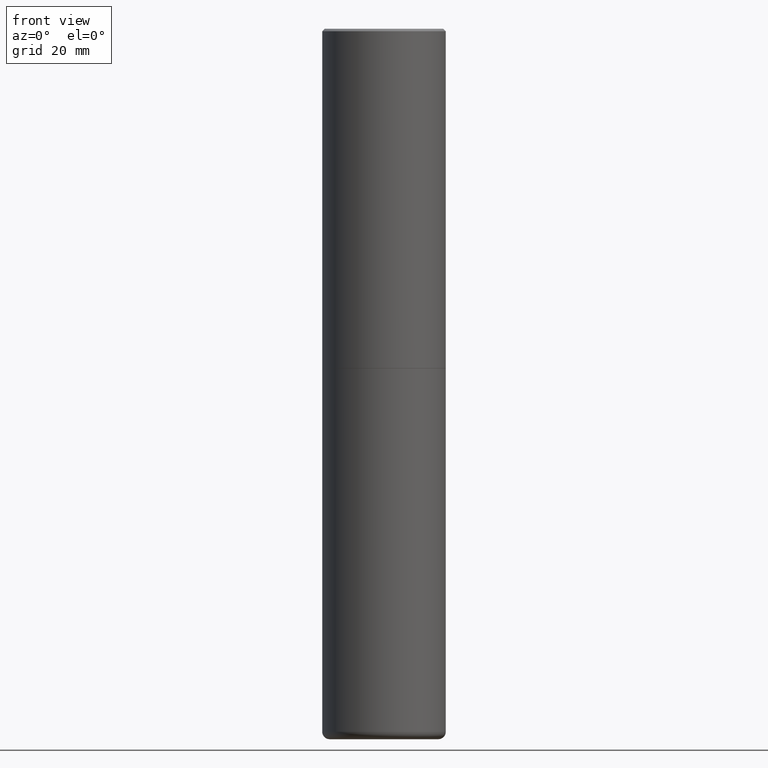
[diagram: clean part render]
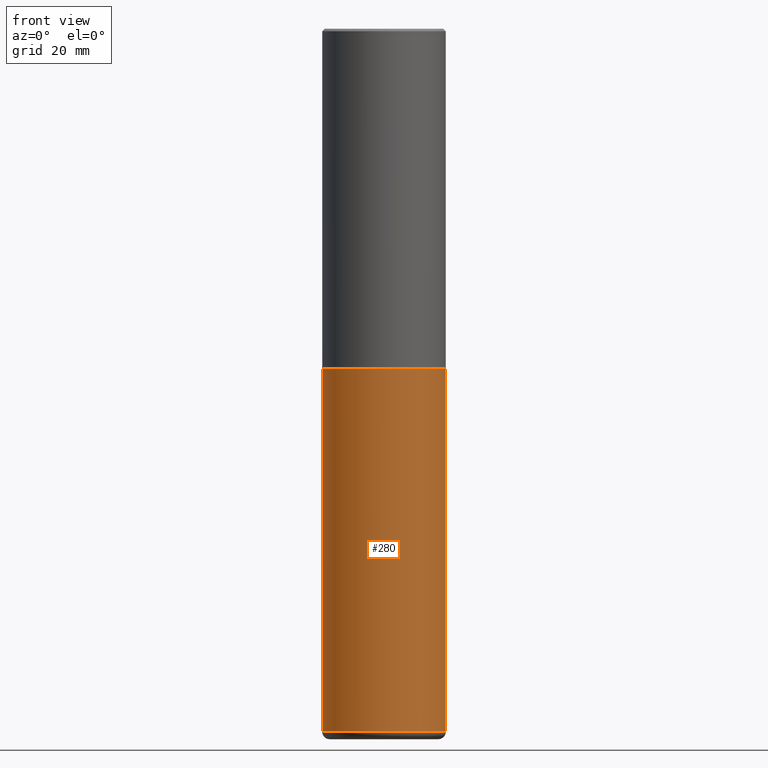
[diagram: same view with one face highlighted and labeled with its STEP entity id]
A machine part, front view. The second image highlights one B-rep face of the part: STEP entity #280.
In plain terms, the highlighted cylindrical surface (partial cylindrical patch) has radius 12.7 mm, axis along (-0, 0, 1).
Its self-contained STEP definition (entity closure, byte-faithful):
#6 = ORIENTED_EDGE ( 'NONE', *, *, #247, .F. ) ;
#28 = CIRCLE ( 'NONE', #373, 0.5000000000000000000 ) ;
#62 = DIRECTION ( 'NONE',  ( 1.000000000000000000, -6.982962677686266711E-15, 4.876176775795935793E-29 ) ) ;
#81 = AXIS2_PLACEMENT_3D ( 'NONE', #197, #248, #62 ) ;
#83 = ORIENTED_EDGE ( 'NONE', *, *, #100, .F. ) ;
#85 = VERTEX_POINT ( 'NONE', #307 ) ;
#92 = CARTESIAN_POINT ( 'NONE',  ( 1.391471750719342616E-28, -1.986652881801749632E-14, -5.689999999999999503 ) ) ;
#95 = CYLINDRICAL_SURFACE ( 'NONE', #81, 0.5000000000000000000 ) ;
#100 = EDGE_CURVE ( 'NONE', #261, #169, #136, .T. ) ;
#114 = VECTOR ( 'NONE', #393, 39.37007874015748143 ) ;
#123 = DIRECTION ( 'NONE',  ( -2.445468806185136597E-29, 3.491481338843145583E-15, 1.000000000000000000 ) ) ;
#125 = VECTOR ( 'NONE', #285, 39.37007874015748143 ) ;
#130 = DIRECTION ( 'NONE',  ( -2.445468806185136597E-29, 3.491481338843145583E-15, 1.000000000000000000 ) ) ;
#136 = LINE ( 'NONE', #270, #114 ) ;
#152 = DIRECTION ( 'NONE',  ( 1.000000000000000000, -6.982962677686263555E-15, 0.000000000000000000 ) ) ;
#154 = CARTESIAN_POINT ( 'NONE',  ( 0.5000000000000000000, -3.491481338843133355E-15, 2.438088387897967896E-29 ) ) ;
#163 = FACE_OUTER_BOUND ( 'NONE', #328, .T. ) ;
#169 = VERTEX_POINT ( 'NONE', #323 ) ;
#180 = EDGE_CURVE ( 'NONE', #261, #211, #391, .T. ) ;
#197 = CARTESIAN_POINT ( 'NONE',  ( 0.000000000000000000, 0.000000000000000000, 0.000000000000000000 ) ) ;
#202 = CARTESIAN_POINT ( 'NONE',  ( 6.725039217009123399E-29, -9.601573681818648281E-15, -2.749999999999999556 ) ) ;
#211 = VERTEX_POINT ( 'NONE', #413 ) ;
#224 = LINE ( 'NONE', #154, #125 ) ;
#236 = ORIENTED_EDGE ( 'NONE', *, *, #180, .T. ) ;
#247 = EDGE_CURVE ( 'NONE', #169, #85, #28, .T. ) ;
#248 = DIRECTION ( 'NONE',  ( -2.445468806185136597E-29, 3.491481338843145583E-15, 1.000000000000000000 ) ) ;
#260 = CARTESIAN_POINT ( 'NONE',  ( -0.5000000000000002220, -1.631381513921699223E-14, -5.689999999999999503 ) ) ;
#261 = VERTEX_POINT ( 'NONE', #260 ) ;
#270 = CARTESIAN_POINT ( 'NONE',  ( -0.5000000000000000000, 3.552713678800500929E-15, -2.459467545127452891E-29 ) ) ;
#280 = ADVANCED_FACE ( 'NONE', ( #163 ), #95, .T. ) ;
#285 = DIRECTION ( 'NONE',  ( -2.445468806185136877E-29, 3.491481338843145188E-15, 1.000000000000000000 ) ) ;
#287 = AXIS2_PLACEMENT_3D ( 'NONE', #92, #130, #152 ) ;
#307 = CARTESIAN_POINT ( 'NONE',  ( 0.5000000000000000000, -1.309305502066178164E-14, -2.749999999999999556 ) ) ;
#319 = EDGE_CURVE ( 'NONE', #211, #85, #224, .T. ) ;
#323 = CARTESIAN_POINT ( 'NONE',  ( -0.5000000000000000000, -1.118133757111757137E-14, -2.749999999999999556 ) ) ;
#328 = EDGE_LOOP ( 'NONE', ( #83, #236, #403, #6 ) ) ;
#349 = DIRECTION ( 'NONE',  ( 1.000000000000000000, -6.982962677686266711E-15, 0.000000000000000000 ) ) ;
#373 = AXIS2_PLACEMENT_3D ( 'NONE', #202, #123, #349 ) ;
#391 = CIRCLE ( 'NONE', #287, 0.4999999999999999445 ) ;
#393 = DIRECTION ( 'NONE',  ( -2.445468806185136877E-29, 3.491481338843145188E-15, 1.000000000000000000 ) ) ;
#403 = ORIENTED_EDGE ( 'NONE', *, *, #319, .T. ) ;
#413 = CARTESIAN_POINT ( 'NONE',  ( 0.5000000000000002220, -2.335801015686062967E-14, -5.689999999999999503 ) ) ;